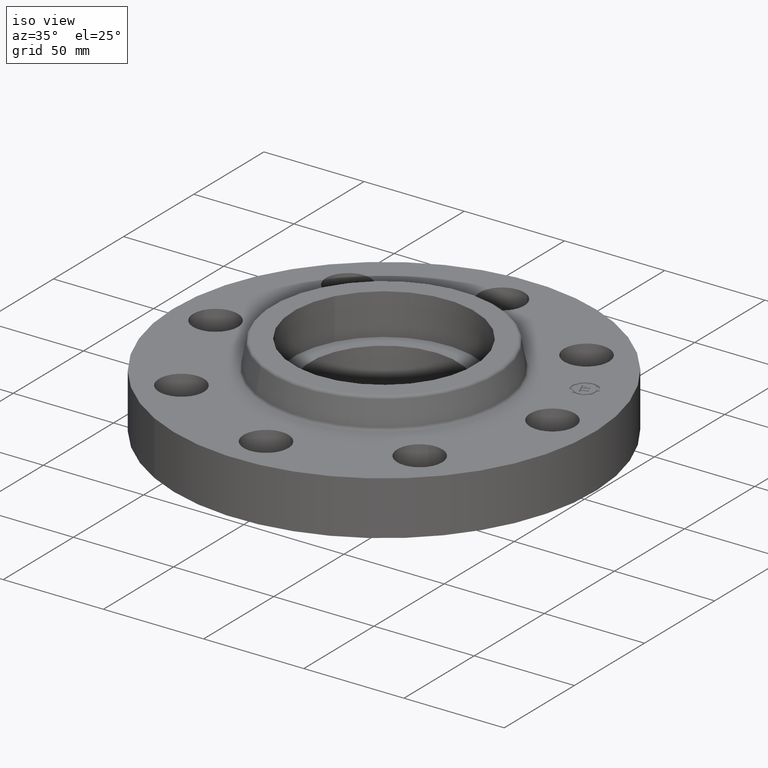
[diagram: clean part render]
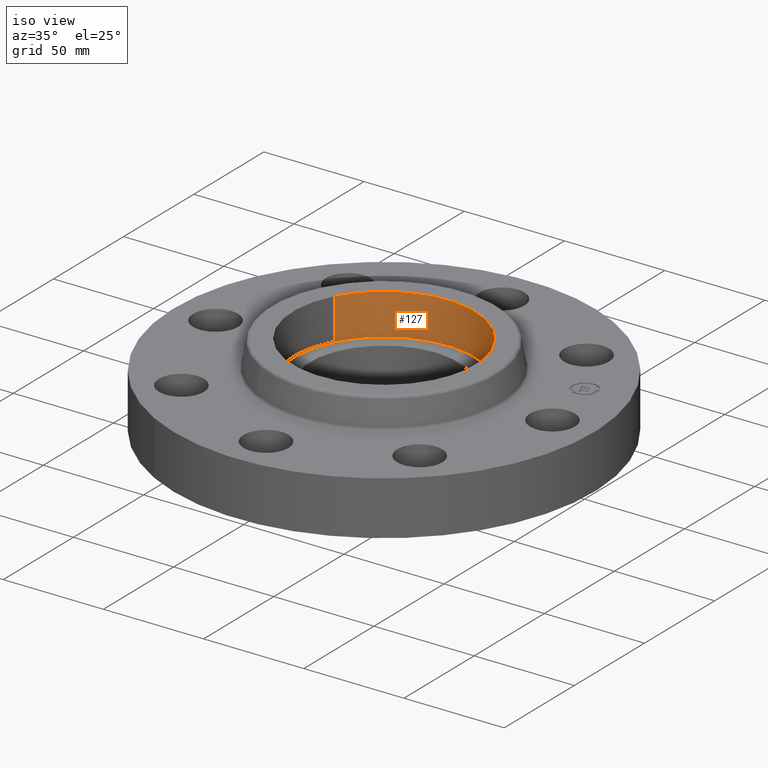
[diagram: same view with one face highlighted and labeled with its STEP entity id]
A machine part, iso view. The second image highlights one B-rep face of the part: STEP entity #127.
In plain terms, the highlighted cylindrical surface (partial cylindrical patch) has radius 45.339 mm, axis along (0, 0, -1).
Its self-contained STEP definition (entity closure, byte-faithful):
#42=AXIS2_PLACEMENT_3D('Circle Axis2P3D',#40,#41,$) ;
#88=AXIS2_PLACEMENT_3D('Cylinder Axis2P3D',#85,#86,#87) ;
#40=CARTESIAN_POINT('Axis2P3D Location',(2.09805925913E-016,-9.09159012291E-016,0.820000000003)) ;
#44=CARTESIAN_POINT('Vertex',(-1.566484873,0.855774586419,0.820000000003)) ;
#46=CARTESIAN_POINT('Vertex',(1.566484873,-0.855774586419,0.820000000003)) ;
#85=CARTESIAN_POINT('Axis2P3D Location',(0.,-6.99353086378E-017,1.62606299213)) ;
#91=CARTESIAN_POINT('Control Point',(-1.56648487298,0.855774586414,1.63000000001)) ;
#92=CARTESIAN_POINT('Control Point',(-1.43206011529,1.10183745486,1.63000000001)) ;
#93=CARTESIAN_POINT('Control Point',(-1.24932102636,1.32150608385,1.63000000001)) ;
#94=CARTESIAN_POINT('Control Point',(-1.02513897874,1.50208902228,1.63000000001)) ;
#95=CARTESIAN_POINT('Control Point',(-0.51804790864,1.76562302648,1.63)) ;
#96=CARTESIAN_POINT('Control Point',(0.051042543653,1.81784928289,1.63)) ;
#97=CARTESIAN_POINT('Control Point',(0.33725461007,1.78702005712,1.63)) ;
#98=CARTESIAN_POINT('Control Point',(0.882168825865,1.61479920422,1.63)) ;
#99=CARTESIAN_POINT('Control Point',(1.32150608385,1.24932102636,1.63)) ;
#100=CARTESIAN_POINT('Control Point',(1.50208902228,1.02513897874,1.63)) ;
#101=CARTESIAN_POINT('Control Point',(1.76562302648,0.51804790864,1.62999999999)) ;
#102=CARTESIAN_POINT('Control Point',(1.81784928289,-0.0510425436528,1.62999999999)) ;
#103=CARTESIAN_POINT('Control Point',(1.78702005712,-0.33725461007,1.62999999999)) ;
#104=CARTESIAN_POINT('Control Point',(1.70090963067,-0.609711717967,1.62999999999)) ;
#105=CARTESIAN_POINT('Control Point',(1.56648487298,-0.855774586414,1.62999999999)) ;
#106=CARTESIAN_POINT('Vertex',(-1.566484873,0.85577458638,1.63000000001)) ;
#108=CARTESIAN_POINT('Vertex',(1.566484873,-0.855774586384,1.63000000001)) ;
#111=CARTESIAN_POINT('Line Origine',(-1.56648487298,0.855774586414,1.22500000001)) ;
#116=CARTESIAN_POINT('Line Origine',(1.56648487298,-0.855774586414,1.22500000001)) ;
#41=DIRECTION('Axis2P3D Direction',(0.,0.,-0.0393700787402)) ;
#86=DIRECTION('Axis2P3D Direction',(0.,0.,-0.0393700787402)) ;
#87=DIRECTION('Axis2P3D XDirection',(-0.0345504945626,0.0188750212049,-0.)) ;
#112=DIRECTION('Vector Direction',(0.,0.,-0.0393700787402)) ;
#117=DIRECTION('Vector Direction',(0.,0.,-0.0393700787402)) ;
#113=VECTOR('Line Direction',#112,0.0393700787402) ;
#118=VECTOR('Line Direction',#117,0.0393700787402) ;
#122=ORIENTED_EDGE('',*,*,#110,.F.) ;
#123=ORIENTED_EDGE('',*,*,#115,.F.) ;
#124=ORIENTED_EDGE('',*,*,#48,.T.) ;
#125=ORIENTED_EDGE('',*,*,#120,.T.) ;
#127=ADVANCED_FACE('PartBody',(#126),#89,.F.) ;
#90=B_SPLINE_CURVE_WITH_KNOTS('',5,(#91,#92,#93,#94,#95,#96,#97,#98,#99,#100,#101,#102,#103,#104,#105),.UNSPECIFIED.,.F.,.U.,(6,3,3,3,6),(-71.2183346609,-35.6091673305,7.1054273576E-015,35.6091673305,71.2183346609),.UNSPECIFIED.) ;
#43=CIRCLE('generated circle',#42,1.78500000003) ;
#89=CYLINDRICAL_SURFACE('generated cylinder',#88,1.78500000001) ;
#48=EDGE_CURVE('',#45,#47,#43,.T.) ;
#110=EDGE_CURVE('',#107,#109,#90,.T.) ;
#115=EDGE_CURVE('',#45,#107,#114,.F.) ;
#120=EDGE_CURVE('',#47,#109,#119,.F.) ;
#121=EDGE_LOOP('',(#122,#123,#124,#125)) ;
#126=FACE_OUTER_BOUND('',#121,.T.) ;
#114=LINE('Line',#111,#113) ;
#119=LINE('Line',#116,#118) ;
#45=VERTEX_POINT('',#44) ;
#47=VERTEX_POINT('',#46) ;
#107=VERTEX_POINT('',#106) ;
#109=VERTEX_POINT('',#108) ;